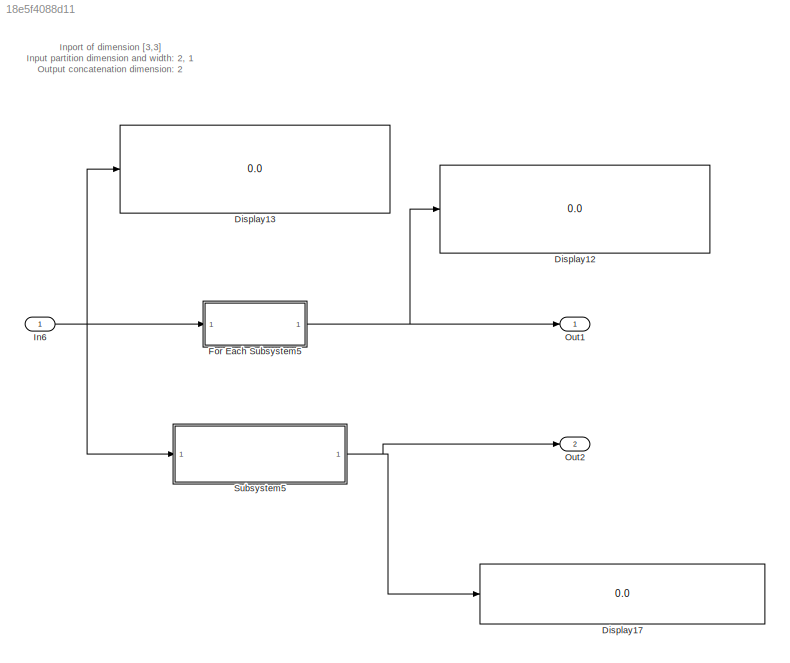
MODEL slx_18e5f4088d11
KIND model
CONFIG AbsTol = auto
CONFIG EnableMultiTasking = on
CONFIG FixedStep = 0.200000
CONFIG MaxStep = auto
CONFIG MinStep = auto
CONFIG RelTol = 1e-3
CONFIG SampleTimeConstraint = Unconstrained
CONFIG Solver = FixedStepDiscrete
CONFIG SolverName = FixedStepDiscrete
CONFIG StartTime = 0.0
CONFIG StopTime = 10.0
BLOCK [Display] Display12
  Decimation = 1
  Ports = [1]
BLOCK [Display] Display13
  Decimation = 1
  Ports = [1]
BLOCK [Display] Display17
  Decimation = 1
  Ports = [1]
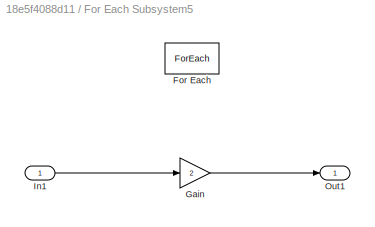
BLOCK [SubSystem] For Each Subsystem5
  Ports = [1, 1]
  RequestExecContextInheritance = off
  Variant = off
BLOCK [ForEach] For Each Subsystem5/For Each
  DisableCoverage = on
  IndexMode = One-based
  Ports = []
BLOCK [Gain] For Each Subsystem5/Gain
  Gain = 2
  OutDataTypeStr = Inherit: Inherit via internal rule
  ParamDataTypeStr = Inherit: Inherit via internal rule
  SaturateOnIntegerOverflow = off
BLOCK [Inport] For Each Subsystem5/In1
  IconDisplay = Port number
  Partition = on
  PartitionDimension = 2
  PartitionOffset = 0
  PartitionWidth = 1
BLOCK [Outport] For Each Subsystem5/Out1
  ConcatenationDimension = 2
  IconDisplay = Port number
BLOCK [Inport] In6
  IconDisplay = Port number
  PortDimensions = [3 3]
BLOCK [Outport] Out1
  IconDisplay = Port number
BLOCK [Outport] Out2
  IconDisplay = Port number
  Port = 2
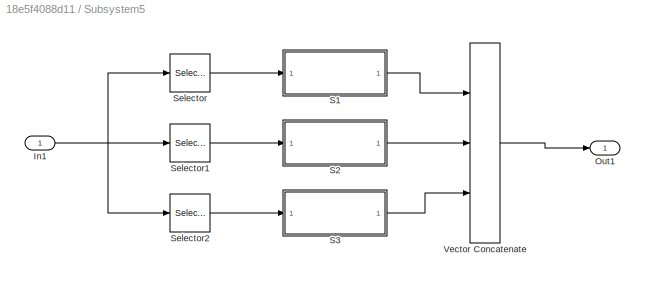
BLOCK [SubSystem] Subsystem5
  Ports = [1, 1]
  RequestExecContextInheritance = off
  Variant = off
BLOCK [Inport] Subsystem5/In1
  IconDisplay = Port number
BLOCK [Outport] Subsystem5/Out1
  IconDisplay = Port number
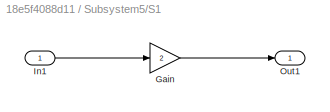
BLOCK [SubSystem] Subsystem5/S1
  Ports = [1, 1]
  RequestExecContextInheritance = off
  Variant = off
BLOCK [Gain] Subsystem5/S1/Gain
  Gain = 2
  OutDataTypeStr = Inherit: Inherit via internal rule
  ParamDataTypeStr = Inherit: Inherit via internal rule
  SaturateOnIntegerOverflow = off
BLOCK [Inport] Subsystem5/S1/In1
  IconDisplay = Port number
BLOCK [Outport] Subsystem5/S1/Out1
  IconDisplay = Port number
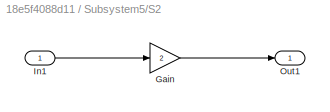
BLOCK [SubSystem] Subsystem5/S2
  Ports = [1, 1]
  RequestExecContextInheritance = off
  Variant = off
BLOCK [Gain] Subsystem5/S2/Gain
  Gain = 2
  OutDataTypeStr = Inherit: Inherit via internal rule
  ParamDataTypeStr = Inherit: Inherit via internal rule
  SaturateOnIntegerOverflow = off
BLOCK [Inport] Subsystem5/S2/In1
  IconDisplay = Port number
BLOCK [Outport] Subsystem5/S2/Out1
  IconDisplay = Port number
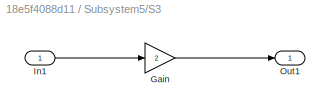
BLOCK [SubSystem] Subsystem5/S3
  Ports = [1, 1]
  RequestExecContextInheritance = off
  Variant = off
BLOCK [Gain] Subsystem5/S3/Gain
  Gain = 2
  OutDataTypeStr = Inherit: Inherit via internal rule
  ParamDataTypeStr = Inherit: Inherit via internal rule
  SaturateOnIntegerOverflow = off
BLOCK [Inport] Subsystem5/S3/In1
  IconDisplay = Port number
BLOCK [Outport] Subsystem5/S3/Out1
  IconDisplay = Port number
BLOCK [Selector] Subsystem5/Selector
  IndexOptions = Select all,Index vector (dialog)
  Indices = 1,1
  InputPortWidth = 3
  NumberOfDimensions = 2
  OutputSizes = 1,1
  Ports = [1, 1]
BLOCK [Selector] Subsystem5/Selector1
  IndexOptions = Select all,Index vector (dialog)
  Indices = 2,2
  InputPortWidth = 3
  NumberOfDimensions = 2
  OutputSizes = 1,1
  Ports = [1, 1]
BLOCK [Selector] Subsystem5/Selector2
  IndexOptions = Select all,Index vector (dialog)
  Indices = 3,3
  InputPortWidth = 3
  NumberOfDimensions = 2
  OutputSizes = 1,1
  Ports = [1, 1]
BLOCK [Concatenate] Subsystem5/Vector Concatenate
  ConcatenateDimension = 2
  Mode = Multidimensional array
  NumInputs = 3
  Ports = [3, 1]
ANNOTATION (root): Inport of dimension [3,3] Input partition dimension and width: 2, 1 Output concatenation dimension: 2
LINE For Each Subsystem5/Gain:1 -> For Each Subsystem5/Out1:1
LINE For Each Subsystem5/In1:1 -> For Each Subsystem5/Gain:1
NET For Each Subsystem5:1 -> Display12:1, Out1:1
NET In6:1 -> Display13:1, For Each Subsystem5:1, Subsystem5:1
NET Subsystem5/In1:1 -> Subsystem5/Selector1:1, Subsystem5/Selector2:1, Subsystem5/Selector:1
LINE Subsystem5/S1/Gain:1 -> Subsystem5/S1/Out1:1
LINE Subsystem5/S1/In1:1 -> Subsystem5/S1/Gain:1
LINE Subsystem5/S1:1 -> Subsystem5/Vector Concatenate:1
LINE Subsystem5/S2/Gain:1 -> Subsystem5/S2/Out1:1
LINE Subsystem5/S2/In1:1 -> Subsystem5/S2/Gain:1
LINE Subsystem5/S2:1 -> Subsystem5/Vector Concatenate:2
LINE Subsystem5/S3/Gain:1 -> Subsystem5/S3/Out1:1
LINE Subsystem5/S3/In1:1 -> Subsystem5/S3/Gain:1
LINE Subsystem5/S3:1 -> Subsystem5/Vector Concatenate:3
LINE Subsystem5/Selector1:1 -> Subsystem5/S2:1
LINE Subsystem5/Selector2:1 -> Subsystem5/S3:1
LINE Subsystem5/Selector:1 -> Subsystem5/S1:1
LINE Subsystem5/Vector Concatenate:1 -> Subsystem5/Out1:1
NET Subsystem5:1 -> Display17:1, Out2:1
note: NET lines group one-source signal fan-out (src -> all destinations, sorted); 1:1 wires keep LINE
